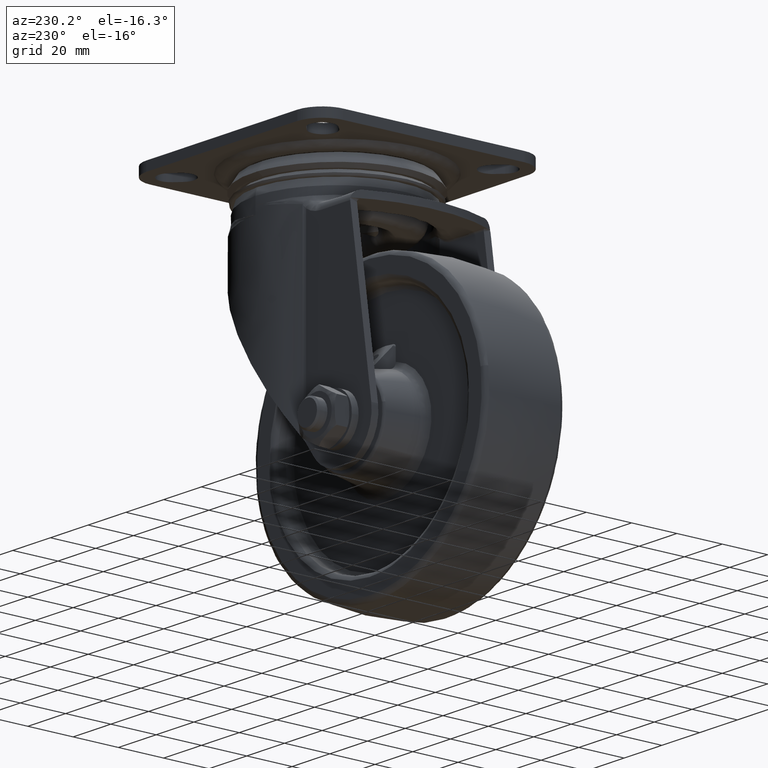
[diagram: clean part render]
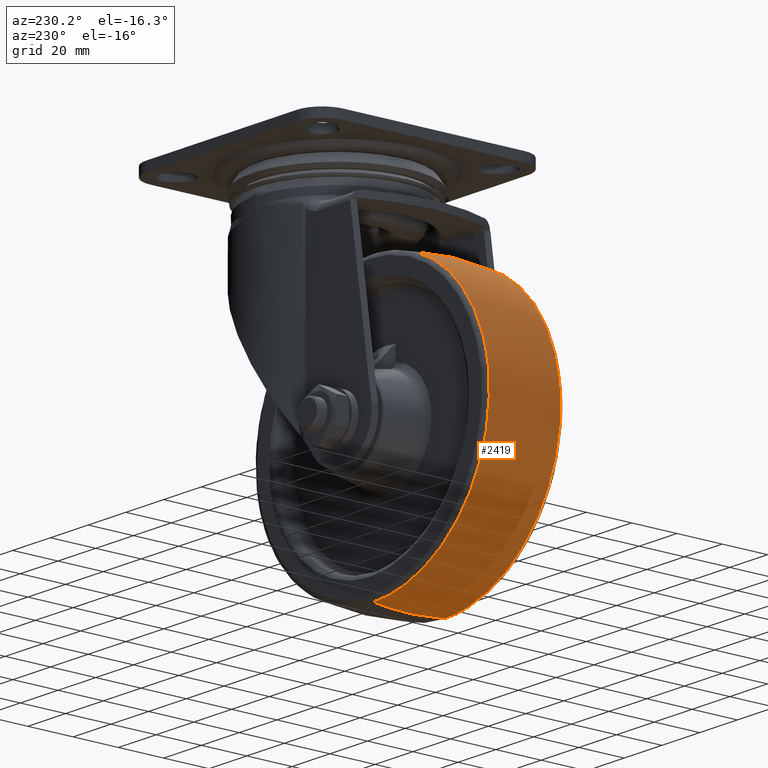
[diagram: same view with one face highlighted and labeled with its STEP entity id]
A machine part, auxiliary view. The second image highlights one B-rep face of the part: STEP entity #2419.
In plain terms, the highlighted face is a freeform B-spline surface patch.
Its self-contained STEP definition (entity closure, byte-faithful):
#2112=CARTESIAN_POINT('',(-99.110630181499644,-15.752005205022961,-112.440966549325300));
#2113=VERTEX_POINT('',#2112);
#2127=CARTESIAN_POINT('',(-38.000026702880859,-15.751997212437580,-167.003433614674800));
#2128=VERTEX_POINT('',#2127);
#2129=CARTESIAN_POINT('',(-99.110630181499644,-15.752005205022966,-112.440966549325280));
#2130=CARTESIAN_POINT('',(-92.913315452116379,-15.751997237275624,-167.003433636062510));
#2131=CARTESIAN_POINT('',(-38.000026702880859,-15.751997212437580,-167.003433614674800));
#2139=(BOUNDED_CURVE()B_SPLINE_CURVE(2,(#2129,#2130,#2131),.UNSPECIFIED.,.F.,.U.)B_SPLINE_CURVE_WITH_KNOTS((3,3),(0.769555761310255,1.0),.UNSPECIFIED.)CURVE()GEOMETRIC_REPRESENTATION_ITEM()RATIONAL_B_SPLINE_CURVE((0.957762337289689,0.730017780692581,1.0))REPRESENTATION_ITEM(''));
#2140=EDGE_CURVE('',#2113,#2128,#2139,.T.);
#2208=CARTESIAN_POINT('',(-38.000026702880859,-15.752015119141831,-43.996368224422042));
#2209=VERTEX_POINT('',#2208);
#2223=CARTESIAN_POINT('',(-38.000026702880859,-15.752015119141831,-43.996368224422042));
#2224=CARTESIAN_POINT('',(-99.503556840470068,-15.752015141318424,-43.996368243518013));
#2225=CARTESIAN_POINT('',(-99.503557028772022,-15.752006212804350,-105.499900960032090));
#2226=CARTESIAN_POINT('',(-99.503557039431627,-15.752005707369962,-108.981555356672940));
#2227=CARTESIAN_POINT('',(-99.110630181499644,-15.752005205022966,-112.440966549325280));
#2235=(BOUNDED_CURVE()B_SPLINE_CURVE(2,(#2223,#2224,#2225,#2226,#2227),.UNSPECIFIED.,.F.,.U.)B_SPLINE_CURVE_WITH_KNOTS((3,2,3),(0.500000000000000,0.750000000000000,0.769555761310255),.UNSPECIFIED.)CURVE()GEOMETRIC_REPRESENTATION_ITEM()RATIONAL_B_SPLINE_CURVE((1.0,0.707106781186547,1.0,0.977089000493967,0.957762337289689))REPRESENTATION_ITEM(''));
#2236=EDGE_CURVE('',#2209,#2113,#2235,.T.);
#2285=CARTESIAN_POINT('',(-38.000026702880859,15.752000884006289,-167.003433148281400));
#2286=VERTEX_POINT('',#2285);
#2287=CARTESIAN_POINT('',(-38.000026702880859,-15.751997212437580,-167.003433614674800));
#2288=CARTESIAN_POINT('',(-38.000026702880859,-11.345351282526471,-167.563263387767110));
#2289=CARTESIAN_POINT('',(-38.000026702880859,-0.829163570197537,-168.332750485692910));
#2290=CARTESIAN_POINT('',(-38.000026702880859,9.713286992336261,-167.770858403796210));
#2291=CARTESIAN_POINT('',(-38.000026702880859,15.752000884006289,-167.003433148281400));
#2292=B_SPLINE_CURVE_WITH_KNOTS('',3,(#2287,#2288,#2289,#2290,#2291),.UNSPECIFIED.,.F.,.U.,(4,1,4),(-9.627389E-009,13.326204613863389,31.588000894272980),.UNSPECIFIED.);
#2293=EDGE_CURVE('',#2128,#2286,#2292,.T.);
#2310=CARTESIAN_POINT('',(-38.000026702880859,15.752000883952640,-43.996367746243017));
#2311=VERTEX_POINT('',#2310);
#2327=CARTESIAN_POINT('',(-38.000026702880859,-15.752015119141831,-43.996368224422042));
#2328=CARTESIAN_POINT('',(-38.000026702880859,-9.386907328877310,-43.187405587161052));
#2329=CARTESIAN_POINT('',(-38.000026702880859,1.160795393376816,-42.667094659726679));
#2330=CARTESIAN_POINT('',(-38.000026702880859,11.671742902802301,-43.478021450385967));
#2331=CARTESIAN_POINT('',(-38.000026702880859,15.752000883952640,-43.996367746243017));
#2332=B_SPLINE_CURVE_WITH_KNOTS('',3,(#2327,#2328,#2329,#2330,#2331),.UNSPECIFIED.,.F.,.U.,(4,1,4),(-9.625911E-009,19.248849992965940,31.588018943076261),.UNSPECIFIED.);
#2333=EDGE_CURVE('',#2209,#2311,#2332,.T.);
#2340=CARTESIAN_POINT('',(-36.286518310917224,-17.340247613643623,-44.208471853197310));
#2341=CARTESIAN_POINT('',(-36.252730373485811,-8.712241549687626,-42.999892447265644));
#2342=CARTESIAN_POINT('',(-36.252730373485825,7.898711E-015,-42.999892447265673));
#2343=CARTESIAN_POINT('',(-36.252730373485811,8.712233818221376,-42.999892447265637));
#2344=CARTESIAN_POINT('',(-36.286518251238597,17.340232374246337,-44.208469718519446));
#2345=CARTESIAN_POINT('',(-37.138282984958011,-17.340247613643619,-44.208471853197310));
#2346=CARTESIAN_POINT('',(-37.121290629998072,-8.712241549687626,-42.999892447265644));
#2347=CARTESIAN_POINT('',(-37.121290629998079,7.898711E-015,-42.999892447265644));
#2348=CARTESIAN_POINT('',(-37.121290629998072,8.712233818221376,-42.999892447265644));
#2349=CARTESIAN_POINT('',(-37.138282954944927,17.340232374246334,-44.208469718519453));
#2350=CARTESIAN_POINT('',(-99.291455296949195,-17.340247613643619,-44.208471853197310));
#2351=CARTESIAN_POINT('',(-100.500034702880870,-8.712241549687626,-42.999892447265637));
#2352=CARTESIAN_POINT('',(-100.500034702880850,7.898711E-015,-42.999892447265651));
#2353=CARTESIAN_POINT('',(-100.500034702880850,8.712233818221376,-42.999892447265644));
#2354=CARTESIAN_POINT('',(-99.291457431627052,17.340232374246330,-44.208469718519446));
#2355=CARTESIAN_POINT('',(-99.291455296949195,-17.340247613643626,-105.499900447265700));
#2356=CARTESIAN_POINT('',(-100.500034702880870,-8.712241549687626,-105.499900447265670));
#2357=CARTESIAN_POINT('',(-100.500034702880900,7.898711E-015,-105.499900447265700));
#2358=CARTESIAN_POINT('',(-100.500034702880850,8.712233818221376,-105.499900447265690));
#2359=CARTESIAN_POINT('',(-99.291457431627038,17.340232374246330,-105.499900447265660));
#2360=CARTESIAN_POINT('',(-99.291455296949195,-17.340247613643619,-166.791329041334020));
#2361=CARTESIAN_POINT('',(-100.500034702880870,-8.712241549687626,-167.999908447265680));
#2362=CARTESIAN_POINT('',(-100.500034702880850,7.898711E-015,-167.999908447265650));
#2363=CARTESIAN_POINT('',(-100.500034702880850,8.712233818221376,-167.999908447265710));
#2364=CARTESIAN_POINT('',(-99.291457431627052,17.340232374246330,-166.791331176011820));
#2365=CARTESIAN_POINT('',(-37.138282984958011,-17.340247613643619,-166.791329041334000));
#2366=CARTESIAN_POINT('',(-37.121290629998065,-8.712241549687626,-167.999908447265620));
#2367=CARTESIAN_POINT('',(-37.121290629998065,7.898711E-015,-167.999908447265680));
#2368=CARTESIAN_POINT('',(-37.121290629998065,8.712233818221376,-167.999908447265620));
#2369=CARTESIAN_POINT('',(-37.138282954944920,17.340232374246334,-166.791331176011850));
#2370=CARTESIAN_POINT('',(-36.286518310917224,-17.340247613643623,-166.791329041334000));
#2371=CARTESIAN_POINT('',(-36.252730373485804,-8.712241549687628,-167.999908447265600));
#2372=CARTESIAN_POINT('',(-36.252730373485811,7.898711E-015,-167.999908447265620));
#2373=CARTESIAN_POINT('',(-36.252730373485797,8.712233818221376,-167.999908447265710));
#2374=CARTESIAN_POINT('',(-36.286518251238583,17.340232374246334,-166.791331176011790));
#2382=(BOUNDED_SURFACE()B_SPLINE_SURFACE(2,2,((#2340,#2345,#2350,#2355,#2360,#2365,#2370),(#2341,#2346,#2351,#2356,#2361,#2366,#2371),(#2342,#2347,#2352,#2357,#2362,#2367,#2372),(#2343,#2348,#2353,#2358,#2363,#2368,#2373),(#2344,#2349,#2354,#2359,#2364,#2369,#2374)),.UNSPECIFIED.,.F.,.F.,.U.)B_SPLINE_SURFACE_WITH_KNOTS((3,2,3),(3,1,2,1,3),(0.0,17.664085513383800,35.328155638587539),(0.0,2.071068076962161,105.624471925069900,209.177875773177700,211.248943850139800),.UNSPECIFIED.)GEOMETRIC_REPRESENTATION_ITEM()RATIONAL_B_SPLINE_SURFACE(((0.979696108896857,0.974023639078727,0.684727678354090,0.968351169260597,0.684727678354090,0.974023639078727,0.979696108896857),(0.993167817144826,0.987417345732384,0.694143303697833,0.981666874319942,0.694143303697833,0.987417345732384,0.993167817144826),(1.011715728752538,1.005857864376269,0.707106781186548,1.0,0.707106781186548,1.005857864376269,1.011715728752538),(0.993167833302957,0.987417361796958,0.694143314991049,0.981666890290960,0.694143314991049,0.987417361796958,0.993167833302957),(0.979696132368789,0.974023662414756,0.684727694759056,0.968351192460722,0.684727694759056,0.974023662414756,0.979696132368789)))REPRESENTATION_ITEM('')SURFACE());
#2383=ORIENTED_EDGE('',*,*,#2293,.F.);
#2384=ORIENTED_EDGE('',*,*,#2140,.F.);
#2385=ORIENTED_EDGE('',*,*,#2236,.F.);
#2386=ORIENTED_EDGE('',*,*,#2333,.T.);
#2387=CARTESIAN_POINT('',(-98.916900098641563,15.752001129568390,-97.025311255728383));
#2388=VERTEX_POINT('',#2387);
#2389=CARTESIAN_POINT('',(-38.000026702880859,15.752000883952640,-43.996367746243017));
#2390=CARTESIAN_POINT('',(-91.539658479383618,15.752001006748939,-43.996367613440512));
#2391=CARTESIAN_POINT('',(-98.916900098641563,15.752001129568397,-97.025311255728383));
#2399=(BOUNDED_CURVE()B_SPLINE_CURVE(2,(#2389,#2390,#2391),.UNSPECIFIED.,.F.,.U.)B_SPLINE_CURVE_WITH_KNOTS((3,3),(0.500000000000000,0.726207392885466),.UNSPECIFIED.)CURVE()GEOMETRIC_REPRESENTATION_ITEM()RATIONAL_B_SPLINE_CURVE((1.0,0.734981554313506,0.949556161949415))REPRESENTATION_ITEM(''));
#2400=EDGE_CURVE('',#2311,#2388,#2399,.T.);
#2401=ORIENTED_EDGE('',*,*,#2400,.T.);
#2402=CARTESIAN_POINT('',(-98.916900098641563,15.752001129568397,-97.025311255728383));
#2403=CARTESIAN_POINT('',(-99.503555906083349,15.752001122170336,-101.242300012354860));
#2404=CARTESIAN_POINT('',(-99.503555840000274,15.752001113671581,-105.499900198853400));
#2405=CARTESIAN_POINT('',(-99.503554885391566,15.752000990902083,-167.003433032675050));
#2406=CARTESIAN_POINT('',(-38.000026702880859,15.752000884006289,-167.003433148281400));
#2414=(BOUNDED_CURVE()B_SPLINE_CURVE(2,(#2402,#2403,#2404,#2405,#2406),.UNSPECIFIED.,.F.,.U.)B_SPLINE_CURVE_WITH_KNOTS((3,2,3),(0.726207392885466,0.750000000000000,1.0),.UNSPECIFIED.)CURVE()GEOMETRIC_REPRESENTATION_ITEM()RATIONAL_B_SPLINE_CURVE((0.949556161949415,0.972125226873041,1.0,0.707106781186548,1.0))REPRESENTATION_ITEM(''));
#2415=EDGE_CURVE('',#2388,#2286,#2414,.T.);
#2416=ORIENTED_EDGE('',*,*,#2415,.T.);
#2417=EDGE_LOOP('',(#2383,#2384,#2385,#2386,#2401,#2416));
#2418=FACE_OUTER_BOUND('',#2417,.T.);
#2419=ADVANCED_FACE('',(#2418),#2382,.T.);